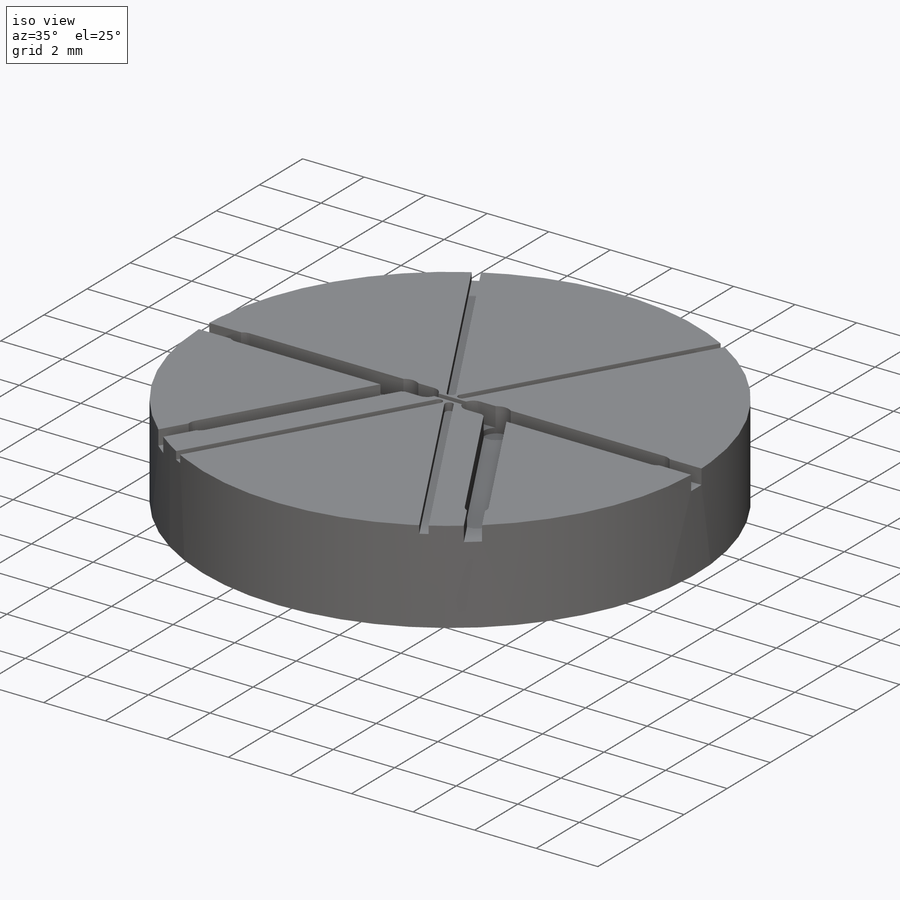
[diagram: iso view]
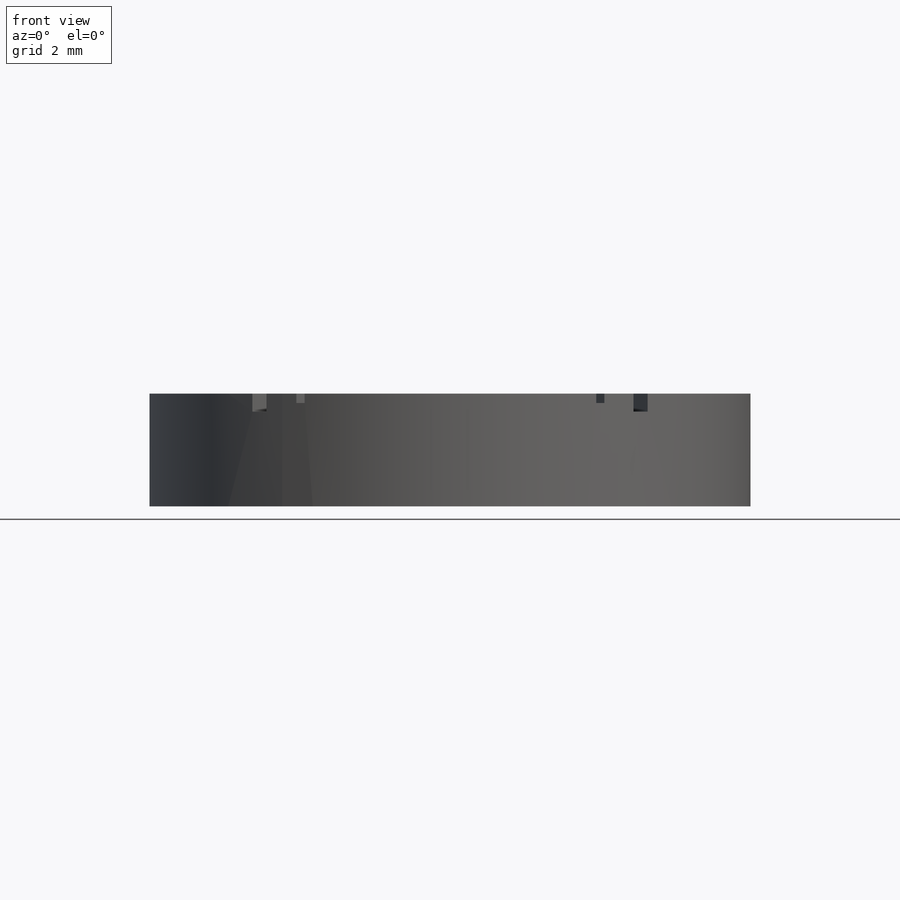
[diagram: front view]
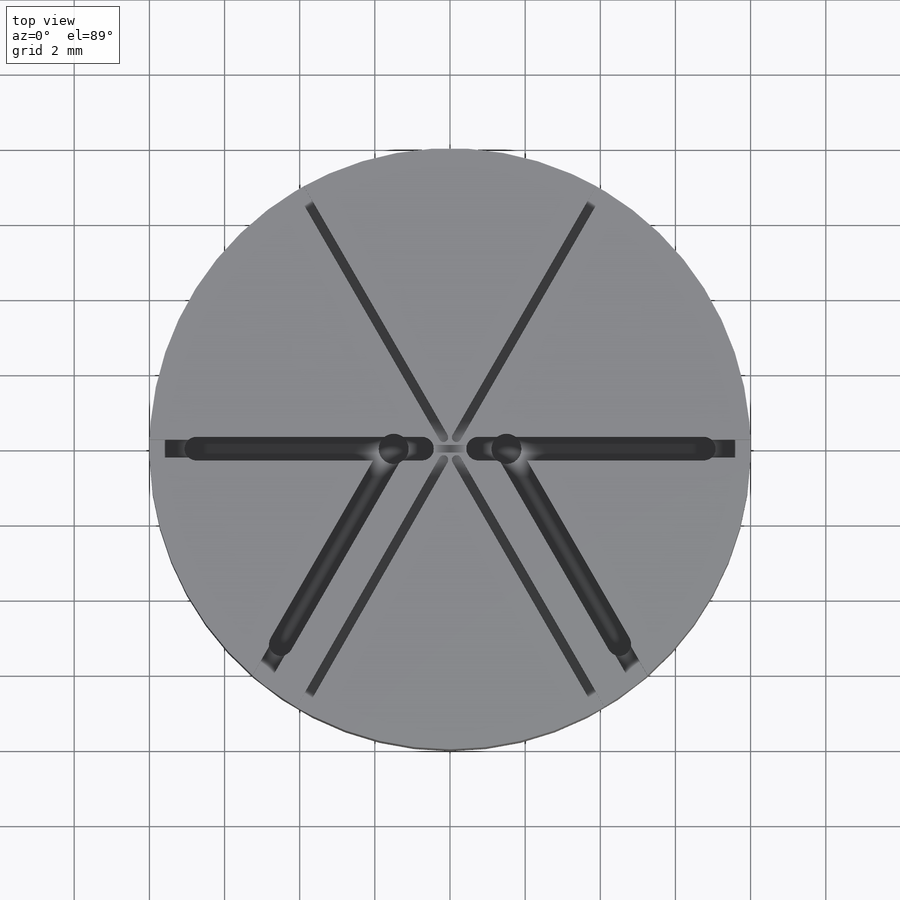
[diagram: top view]
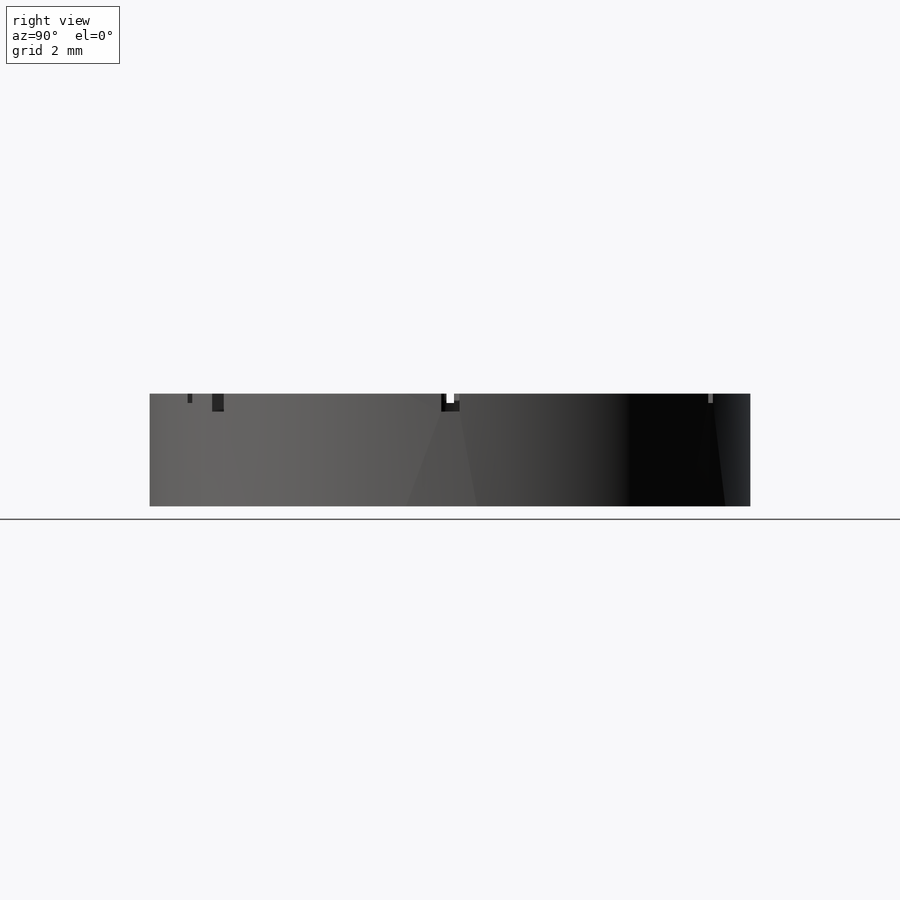
[diagram: right view]
SOLIDWORKS PART (.sldprt)
format: sldprt  version: not decoded by parser v0  size: 285,184 bytes
history: native  units: mm
features: sketch x5, cut_extrude x4, material x1, extrude x1 + 1 further entry (+15 scaffold rows collapsed)
feature tree (27):
  scaffold x15  (default folders/planes/origin — collapsed)
  material  "Material <not specified>"
  "Annotations"  RD1=0.635mm RD2=0.48mm RD3=0.2mm
  sketch  "Sketch1"  dims[D1=12.0mm]
  extrude  "Boss-Extrude1"  Depth=3mm
  sketch  "Sketch2"  dims[D1=1.5mm]
  cut_extrude  "Cut-Extrude1"  Depth=0.25mm
  sketch  "Sketch3"  dims[D1=0.38mm]
  cut_extrude  "Cut-Extrude2"  Depth=0.8mm
  sketch  "Sketch4"  dims[D1=6.0mm]
  cut_extrude  "Cut-Extrude4"  Depth=0.635mm
  sketch  "Sketch5"  dims[D1=0.0mm]
  cut_extrude  "Cut-Extrude6"  Depth=0.48mm
decode coverage: 10 of 10 modeling features carry decoded parameters; 1 rows unclassified (native names shown)
note: suppression state not decoded; provenance and decode notes live in map.json
